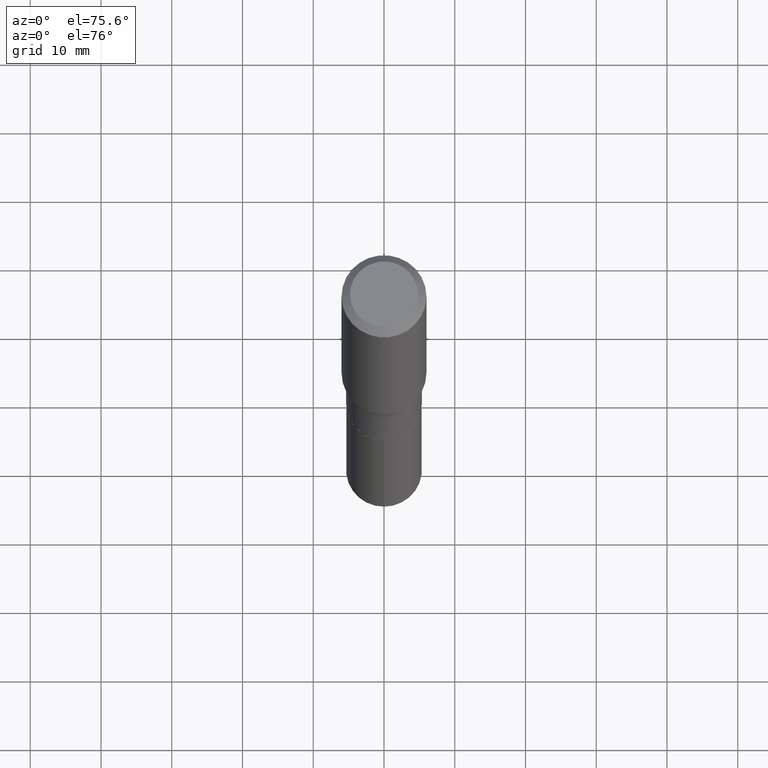
[diagram: clean part render]
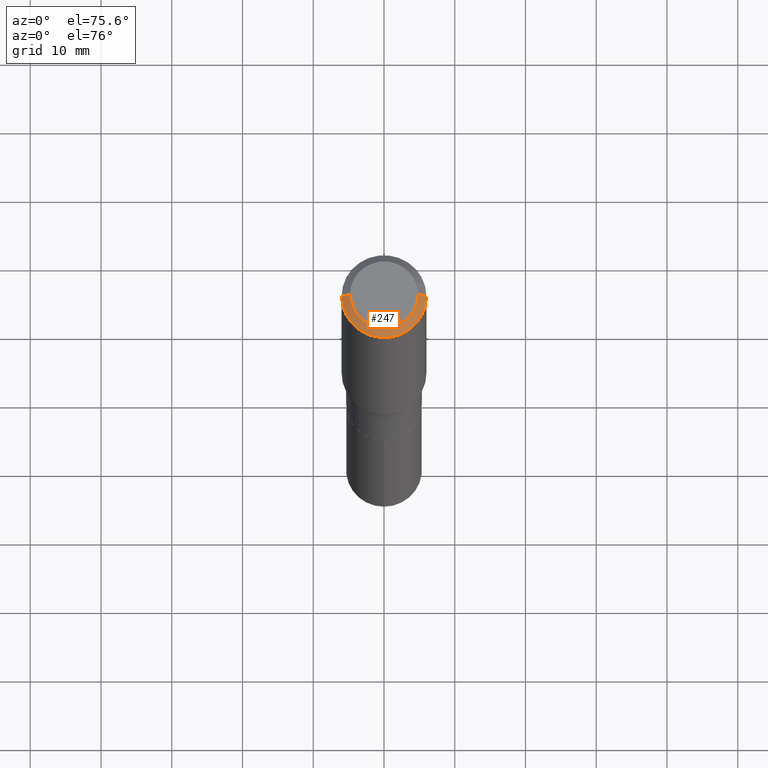
[diagram: same view with one face highlighted and labeled with its STEP entity id]
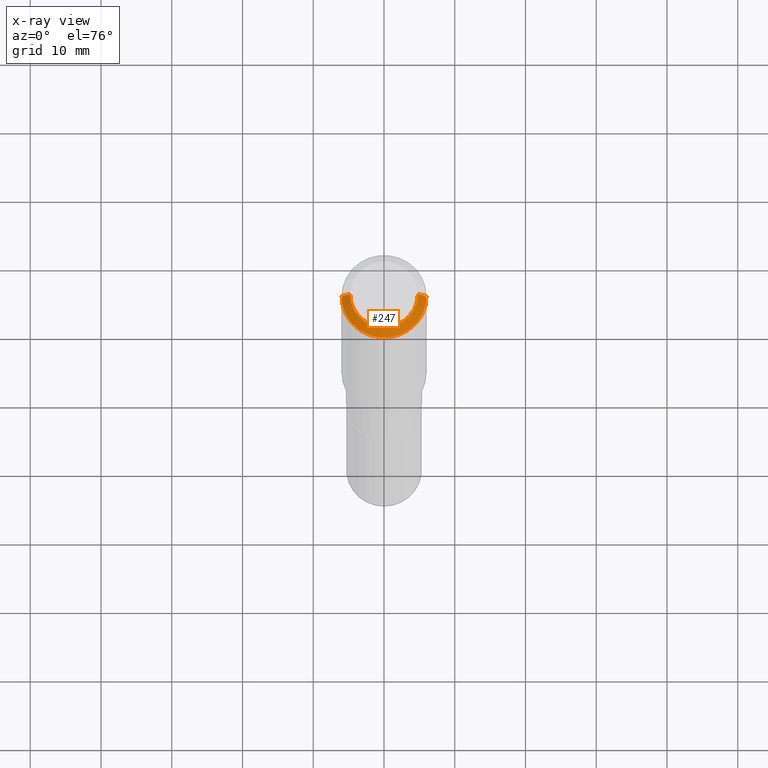
[diagram: x-ray of the same camera — body ghosted, the highlighted face saturated]
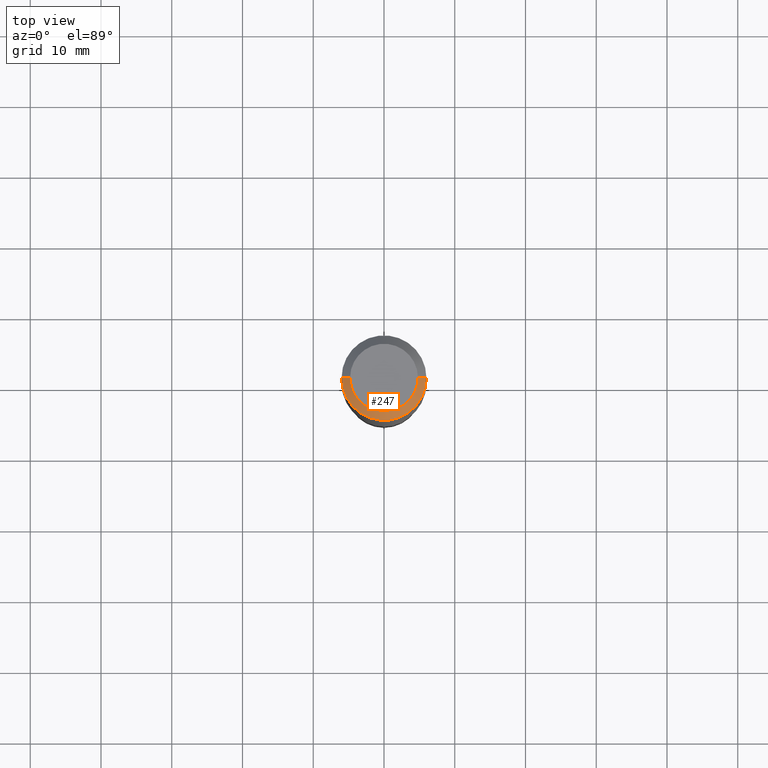
[diagram: same view with one face highlighted and labeled with its STEP entity id]
A machine part, auxiliary view. The second image highlights one B-rep face of the part: STEP entity #247.
The next image is the same camera in x-ray: the body ghosted, the highlighted face saturated — about 0% of this face is hidden behind the body in this view.
A second angle (top view) of the same face is appended — the face is thin or edge-on in the first view.
In plain terms, the highlighted conical surface has half-angle 45 deg.
Its self-contained STEP definition (entity closure, byte-faithful):
#13 = DIRECTION ( 'NONE',  ( -0.7071067811865453523, 2.468850131082234184E-15, -0.7071067811865496822 ) ) ;
#20 = ORIENTED_EDGE ( 'NONE', *, *, #28, .F. ) ;
#28 = EDGE_CURVE ( 'NONE', #286, #47, #483, .T. ) ;
#35 = ORIENTED_EDGE ( 'NONE', *, *, #133, .T. ) ;
#37 = CARTESIAN_POINT ( 'NONE',  ( 1.155239464041865506E-30, -1.649375784469511859E-16, -0.04724000000000028177 ) ) ;
#47 = VERTEX_POINT ( 'NONE', #223 ) ;
#84 = CARTESIAN_POINT ( 'NONE',  ( -9.427742298522546243E-47, 1.346031739168365344E-32, 3.855188123715862256E-18 ) ) ;
#113 = CARTESIAN_POINT ( 'NONE',  ( -0.1889600000000000168, 1.401969416799070942E-15, 3.855188123706346622E-18 ) ) ;
#116 = EDGE_LOOP ( 'NONE', ( #312, #20, #430, #35 ) ) ;
#119 = DIRECTION ( 'NONE',  ( 1.000000000000000000, -6.982962677686266711E-15, 4.876185090822587894E-29 ) ) ;
#128 = VECTOR ( 'NONE', #159, 39.37007874015748143 ) ;
#133 = EDGE_CURVE ( 'NONE', #163, #398, #348, .T. ) ;
#143 = DIRECTION ( 'NONE',  ( 2.445468806185136597E-29, -3.491481338843145583E-15, -1.000000000000000000 ) ) ;
#147 = FACE_OUTER_BOUND ( 'NONE', #116, .T. ) ;
#159 = DIRECTION ( 'NONE',  ( 0.7071067811865453523, -7.319954787623248157E-15, -0.7071067811865496822 ) ) ;
#162 = CARTESIAN_POINT ( 'NONE',  ( -0.2361999999999999933, 1.484438206022545019E-15, -0.04724000000000028177 ) ) ;
#163 = VERTEX_POINT ( 'NONE', #239 ) ;
#184 = DIRECTION ( 'NONE',  ( -1.000000000000000000, 6.982962677686266711E-15, 0.000000000000000000 ) ) ;
#196 = DIRECTION ( 'NONE',  ( -2.445468806185136597E-29, 3.491481338843145583E-15, 1.000000000000000000 ) ) ;
#223 = CARTESIAN_POINT ( 'NONE',  ( 0.1889600000000000168, -1.540873453589747738E-15, 3.855188123725863225E-18 ) ) ;
#229 = EDGE_CURVE ( 'NONE', #47, #398, #237, .T. ) ;
#232 = DIRECTION ( 'NONE',  ( 1.000000000000000000, -6.982962677686266711E-15, 0.000000000000000000 ) ) ;
#237 = LINE ( 'NONE', #392, #128 ) ;
#239 = CARTESIAN_POINT ( 'NONE',  ( -0.2361999999999999933, -1.479376323577688976E-15, -0.04724000000000028177 ) ) ;
#247 = ADVANCED_FACE ( 'NONE', ( #147 ), #420, .T. ) ;
#252 = CARTESIAN_POINT ( 'NONE',  ( 0.2361999999999999933, -1.814313362916447440E-15, -0.04724000000000028177 ) ) ;
#253 = AXIS2_PLACEMENT_3D ( 'NONE', #431, #196, #232 ) ;
#276 = LINE ( 'NONE', #162, #454 ) ;
#286 = VERTEX_POINT ( 'NONE', #113 ) ;
#312 = ORIENTED_EDGE ( 'NONE', *, *, #229, .F. ) ;
#317 = DIRECTION ( 'NONE',  ( -2.445468806185136597E-29, 3.491481338843145583E-15, 1.000000000000000000 ) ) ;
#348 = CIRCLE ( 'NONE', #253, 0.2361999999999999933 ) ;
#392 = CARTESIAN_POINT ( 'NONE',  ( 0.2361999999999999933, -1.785387205520586782E-15, -0.04724000000000028177 ) ) ;
#398 = VERTEX_POINT ( 'NONE', #252 ) ;
#406 = AXIS2_PLACEMENT_3D ( 'NONE', #37, #143, #184 ) ;
#420 = CONICAL_SURFACE ( 'NONE', #406, 0.2361999999999999933, 0.7853981633974452814 ) ;
#430 = ORIENTED_EDGE ( 'NONE', *, *, #479, .T. ) ;
#431 = CARTESIAN_POINT ( 'NONE',  ( 1.155239464041865506E-30, -1.649375784469511859E-16, -0.04724000000000028177 ) ) ;
#454 = VECTOR ( 'NONE', #13, 39.37007874015748143 ) ;
#466 = AXIS2_PLACEMENT_3D ( 'NONE', #84, #317, #119 ) ;
#479 = EDGE_CURVE ( 'NONE', #286, #163, #276, .T. ) ;
#483 = CIRCLE ( 'NONE', #466, 0.1889600000000000168 ) ;